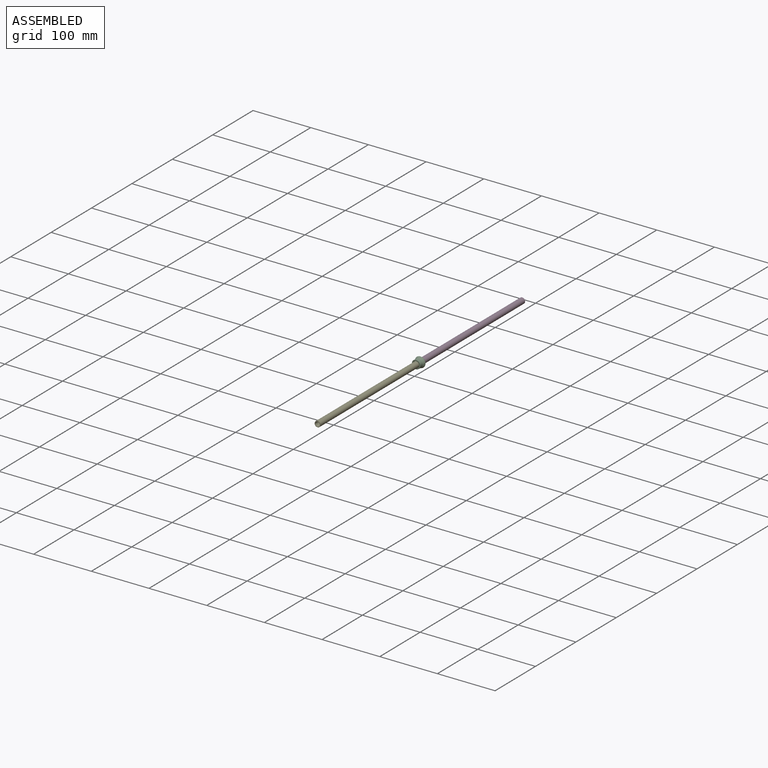
[diagram: assembled view]
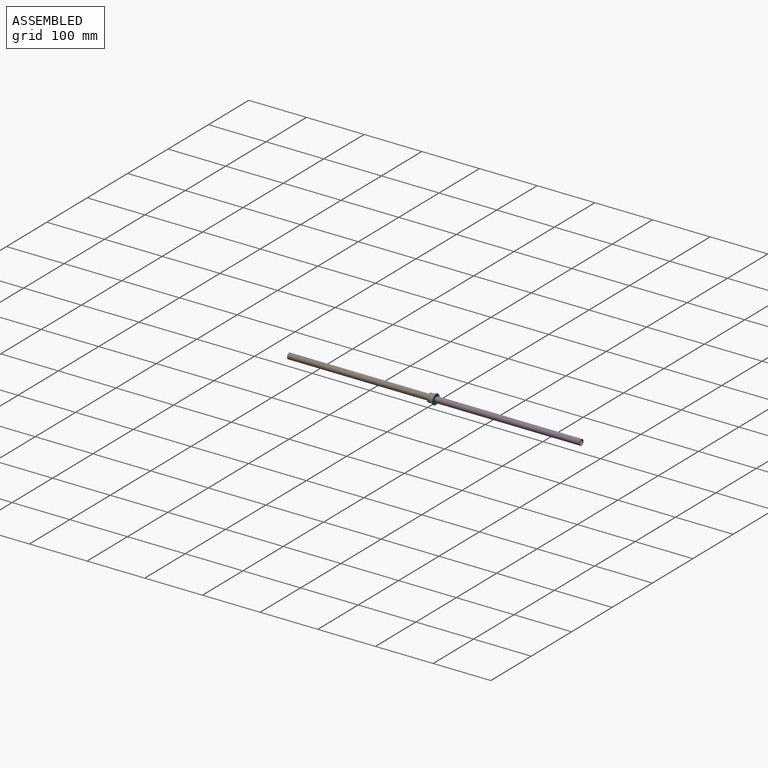
[diagram: assembled view, second angle]
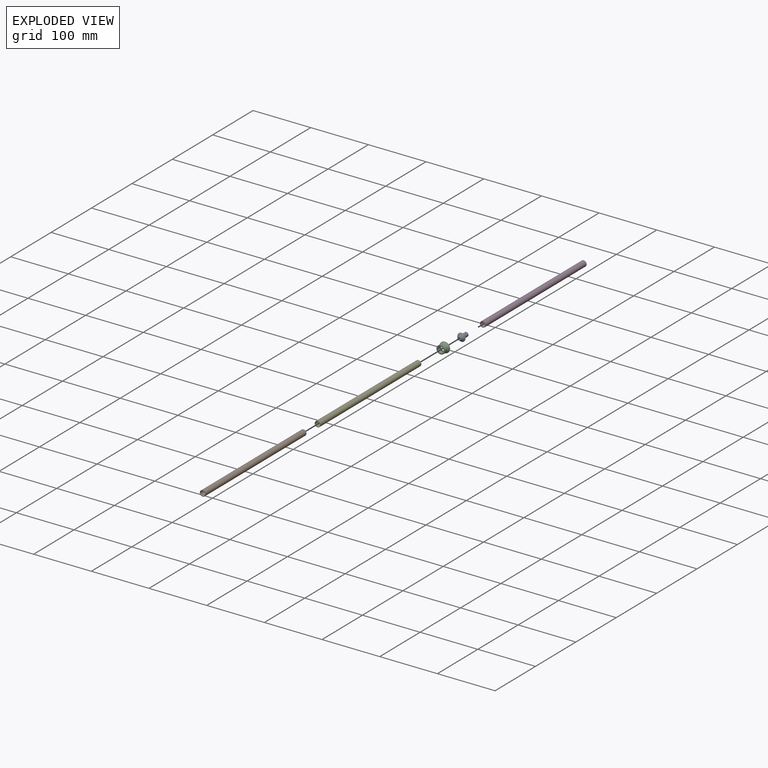
[diagram: exploded view]
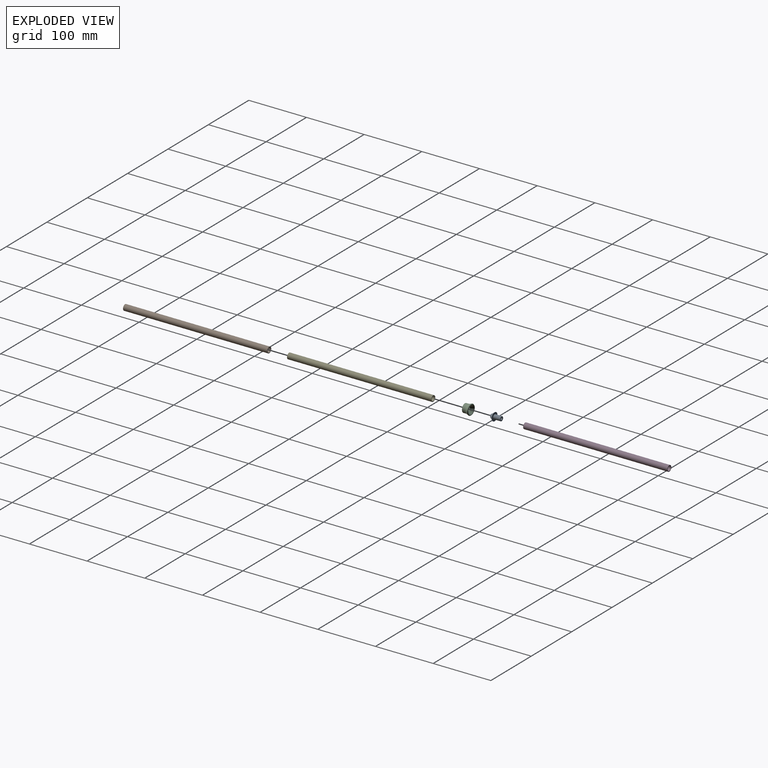
[diagram: exploded view, second angle]
FCSTD DOCUMENT  (FreeCAD 1.0R39109 (Git))
Label: banderole_elastique
License: All rights reserved
LicenseURL: https://en.wikipedia.org/wiki/All_rights_reserved
objects: Sketcher::SketchObject×5, App::Link×5, PartDesign::Body×3, PartDesign::Revolution×2, PartDesign::Pocket×2, PartDesign::Pad×1, App::Part×1, Part::Compound×1, Part::Box×1, Part::Cut×1
note: 31 computed .brp shape members not serialized (recipe doc carries the construction recipe); baked Part::Feature solids carry a one-line shape summary decoded from their .brp

FEATURE [Sketcher::SketchObject] Sketch
  ArcFitTolerance = 1e-06
  AttachmentSupport = -> [XY_Plane]
  FullyConstrained = true
  MakeInternals = false
  MapMode = 5
  sketch-geometry (8):
    g0: LineSegment StartX=-7.3 StartY=0 StartZ=0 EndX=-7.3 EndY=5.63584 EndZ=0
    g1: LineSegment StartX=-7.3 StartY=5.63584 StartZ=0 EndX=-8.9177 EndY=9.9309 EndZ=0
    g2: LineSegment StartX=-7.3 StartY=0 StartZ=0 EndX=-5.3 EndY=0 EndZ=0
    g3: LineSegment StartX=-5.3 StartY=0 StartZ=0 EndX=-5.3 EndY=6 EndZ=0
    g4: LineSegment [constr] StartX=-5.3 StartY=6 StartZ=0 EndX=-7.04605 EndY=10.6358 EndZ=0
    g5: ArcOfCircle CenterX=-7.98188 CenterY=10.2834 CenterZ=0 NormalX=0 NormalY=0 NormalZ=1 AngleXU=0 Radius=1 StartAngle=0.360209 EndAngle=3.5018
    g6: LineSegment StartX=-7.04605 StartY=10.6358 StartZ=0 EndX=-3.8 EndY=6 EndZ=0
    g7: LineSegment StartX=-3.8 StartY=6 StartZ=0 EndX=-5.3 EndY=6 EndZ=0
  constraints (22):
    c: PointOnObject(g0,g-1)
    c: Vertical(g0)
    c: Coincident(g1,g0)
    c: Coincident(g2,g0)
    c: PointOnObject(g2,g-1)
    c: Coincident(g3,g2)
    c: Vertical(g3)
    c: Coincident(g4,g3)
    c: Tangent(g1,g5) = 1.5708
    c: Tangent(g4,g5) = -1.5708
    c: Distance(g2,g-1) = 5.3
    c: Distance(g2,g2) = 2
    c: Distance(g1,g4) = 2
    c: DistanceY(g3,g3) = 6
    c: Parallel(g1,g4)
    c: DistanceY(g0,g4) = 5
    c: Coincident(g6,g4)
    c: Coincident(g7,g6)
    c: Coincident(g7,g3)
    c: Horizontal(g7)
    c: Angle(g6,g-1) = 0.959931
    c: DistanceX(g6,g-1) = 3.8
FEATURE [PartDesign::Revolution] Revolution
  Angle = 360
  Angle2 = 60
  Axis = (0,1,0)
  Base = (0,0,0)
  Profile = -> Sketch
  ReferenceAxis = -> Sketch [V_Axis]
  Suppressed = false
  Type = 0
FEATURE [PartDesign::Body] Body  label="entonoire_banderole"
  AllowCompound = false
  Group = -> [Sketch,Revolution]
  Origin = -> Origin
  Placement = pos=(0,4,0) rot=(0,0,1;0rad)
  Tip = -> Revolution
FEATURE [Sketcher::SketchObject] Sketch001
  ArcFitTolerance = 1e-06
  AttachmentSupport = -> [XY_Plane001]
  FullyConstrained = true
  MakeInternals = false
  MapMode = 5
  sketch-geometry (5):
    g0: LineSegment StartX=0 StartY=-12 StartZ=0 EndX=-3.8 EndY=-12 EndZ=0
    g1: LineSegment StartX=-3.8 StartY=0 StartZ=0 EndX=-3.8 EndY=-12 EndZ=0
    g2: LineSegment StartX=-3.8 StartY=0 StartZ=0 EndX=-7.00208 EndY=0 EndZ=0
    g3: LineSegment StartX=-7.00208 StartY=0 StartZ=0 EndX=0 EndY=10 EndZ=0
    g4: LineSegment StartX=0 StartY=10 StartZ=0 EndX=0 EndY=-12 EndZ=0
  constraints (15):
    c: PointOnObject(g0,g-2)
    c: Horizontal(g0)
    c: PointOnObject(g2,g-1)
    c: Coincident(g1,g0)
    c: PointOnObject(g2,g-1)
    c: Coincident(g3,g2)
    c: PointOnObject(g3,g-2)
    c: Coincident(g4,g3)
    c: Coincident(g4,g0)
    c: Vertical(g1)
    c: Angle(g-1,g3) = 0.959931
    c: DistanceY(g-1,g3) = 10
    c: DistanceX(g0,g0) = 3.8
    c: DistanceY(g1,g2) = 12
    c: Coincident(g1,g2)
FEATURE [PartDesign::Revolution] Revolution001
  Angle = 360
  Angle2 = 60
  Axis = (0,1,0)
  Base = (0,0,0)
  Profile = -> Sketch001
  ReferenceAxis = -> Sketch001 [V_Axis]
  Suppressed = false
  Type = 0
FEATURE [Sketcher::SketchObject] Sketch002
  ArcFitTolerance = 1e-06
  AttachmentSupport = -> [XZ_Plane001]
  FullyConstrained = true
  MakeInternals = false
  MapMode = 5
  Placement = pos=(0,0,0) rot=(1,0,0;1.5708rad)
  sketch-geometry (1):
    g0: Circle CenterX=0 CenterY=0 CenterZ=0 NormalX=0 NormalY=0 NormalZ=1 AngleXU=0 Radius=2
  constraints (2):
    c: Coincident(g0,g-1)
    c: Diameter(g0) = 4
FEATURE [PartDesign::Pocket] Pocket
  BaseFeature = -> Revolution001
  Direction = (0,1,-2e-16)
  Length = 5
  Length2 = 5
  Midplane = true
  Profile = -> Sketch002
  ReferenceAxis = -> Sketch002 [N_Axis]
  Suppressed = false
  Type = 1
FEATURE [Sketcher::SketchObject] Sketch003
  ArcFitTolerance = 1e-06
  AttachmentSupport = -> [XY_Plane001]
  FullyConstrained = false
  MakeInternals = false
  MapMode = 5
  sketch-geometry (4):
    g0: LineSegment StartX=-5 StartY=9.51684 StartZ=0 EndX=-5 EndY=6 EndZ=0
    g1: LineSegment StartX=-5 StartY=6 StartZ=0 EndX=5 EndY=6 EndZ=0
    g2: LineSegment StartX=5 StartY=6 StartZ=0 EndX=5 EndY=9.51684 EndZ=0
    g3: LineSegment StartX=5 StartY=9.51684 StartZ=0 EndX=-5 EndY=9.51684 EndZ=0
  constraints (10):
    c: Coincident(g0,g1)
    c: Coincident(g1,g2)
    c: Coincident(g2,g3)
    c: Coincident(g3,g0)
    c: Vertical(g0)
    c: Vertical(g2)
    c: Horizontal(g3)
    c: Symmetric(g1,g0,g-2)
    c: DistanceX(g3,g3) = 10
    c: DistanceY(g-1,g1) = 6
FEATURE [PartDesign::Pocket] Pocket001
  BaseFeature = -> Pocket
  Direction = (0,0,-1)
  Length = 5
  Length2 = 5
  Midplane = true
  Profile = -> Sketch003
  ReferenceAxis = -> Sketch003 [N_Axis]
  Suppressed = false
  Type = 1
FEATURE [PartDesign::Body] Body001  label="cone_banderole"
  AllowCompound = false
  Group = -> [Sketch001,Revolution001,Sketch002,Pocket,Sketch003,Pocket001]
  Origin = -> Origin001
  Placement = pos=(0,15,0) rot=(1,0,0;3.14159rad)
  Tip = -> Pocket001
FEATURE [Sketcher::SketchObject] Sketch004
  ArcFitTolerance = 1e-06
  AttachmentSupport = -> [XY_Plane003]
  FullyConstrained = true
  MakeInternals = false
  MapMode = 5
  sketch-geometry (2):
    g0: Circle CenterX=0 CenterY=0 CenterZ=0 NormalX=0 NormalY=0 NormalZ=1 AngleXU=0 Radius=5
    g1: Circle CenterX=0 CenterY=0 CenterZ=0 NormalX=0 NormalY=0 NormalZ=1 AngleXU=0 Radius=4
  constraints (4):
    c: Coincident(g0,g-1)
    c: Coincident(g1,g0)
    c: Diameter(g0) = 10
    c: Diameter(g1) = 8
FEATURE [PartDesign::Pad] Pad
  Direction = (0,0,1)
  Length = 250
  Length2 = 10
  Profile = -> Sketch004
  ReferenceAxis = -> Sketch004 [N_Axis]
  Suppressed = false
  Type = 0
FEATURE [PartDesign::Body] Body002  label="Corps001"
  AllowCompound = false
  Group = -> [Sketch004,Pad]
  Origin = -> Origin003
  Placement = pos=(0,10,0) rot=(1,0,0;1.5708rad)
  Tip = -> Pad
FEATURE [App::Part] Part
  Group = -> [Body002]
  Origin = -> Origin002
FEATURE [App::Link] Link  label="Corps002"
  LinkPlacement = pos=(0,17,4.88762e-06) rot=(-1,0,0;1.5708rad)
  LinkedObject = -> Body002
  Placement = pos=(0,17,4.88762e-06) rot=(-1,0,0;1.5708rad)
FEATURE [App::Link] Body_CutLink
  LinkTransform = true
  LinkedObject = -> Body
FEATURE [App::Link] Body001_CutLink
  LinkTransform = true
  LinkedObject = -> Body001
FEATURE [App::Link] Body002_CutLink
  LinkTransform = true
  LinkedObject = -> Body002
FEATURE [App::Link] Corps002_CutLink
  LinkTransform = true
  LinkedObject = -> Link
FEATURE [Part::Compound] SectionCutCompound
  Links = -> [Body_CutLink,Body001_CutLink,Body002_CutLink,Corps002_CutLink]
FEATURE [Part::Box] SectionCutBoxX
  AttacherType = Attacher::AttachEngine3D
  Height = 18.8188
  Length = 18.9497
  Placement = pos=(-18.9697,-240.5,-9.40942) rot=(0,0,1;0rad)
  Width = 508
FEATURE [Part::Cut] SectionCutX
  Base = -> SectionCutCompound
  Tool = -> SectionCutBoxX
